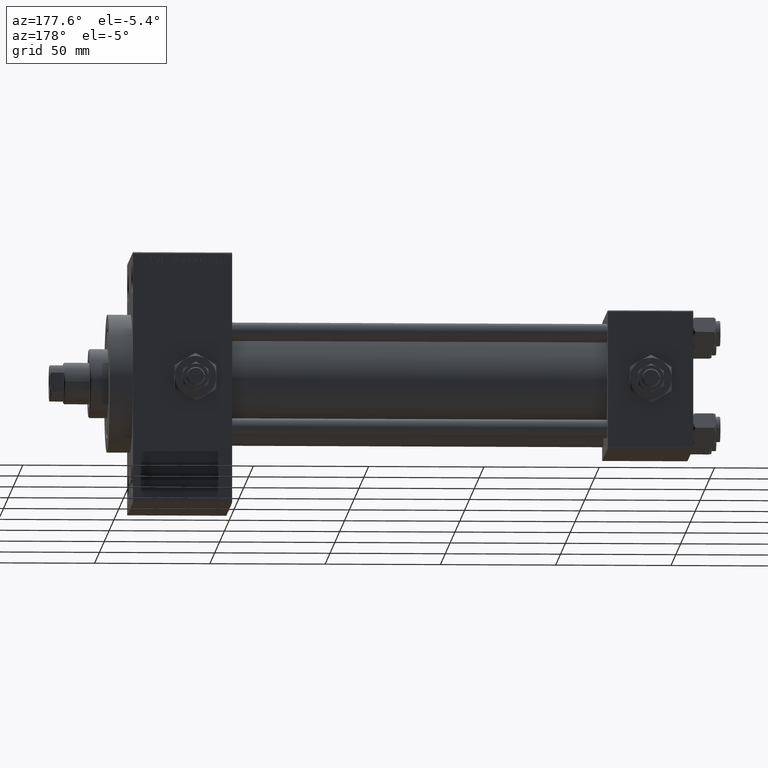
[diagram: clean part render]
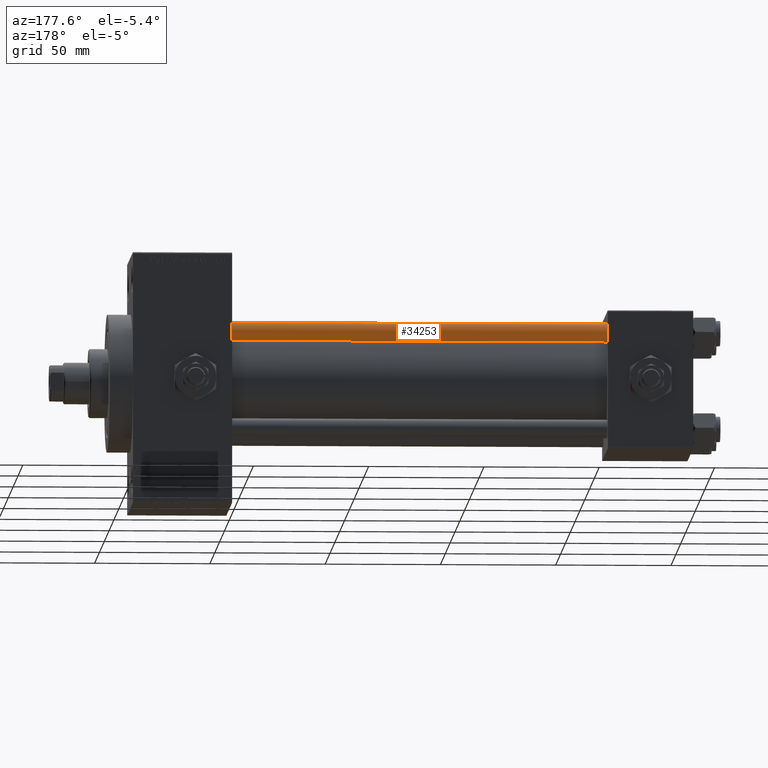
[diagram: same view with one face highlighted and labeled with its STEP entity id]
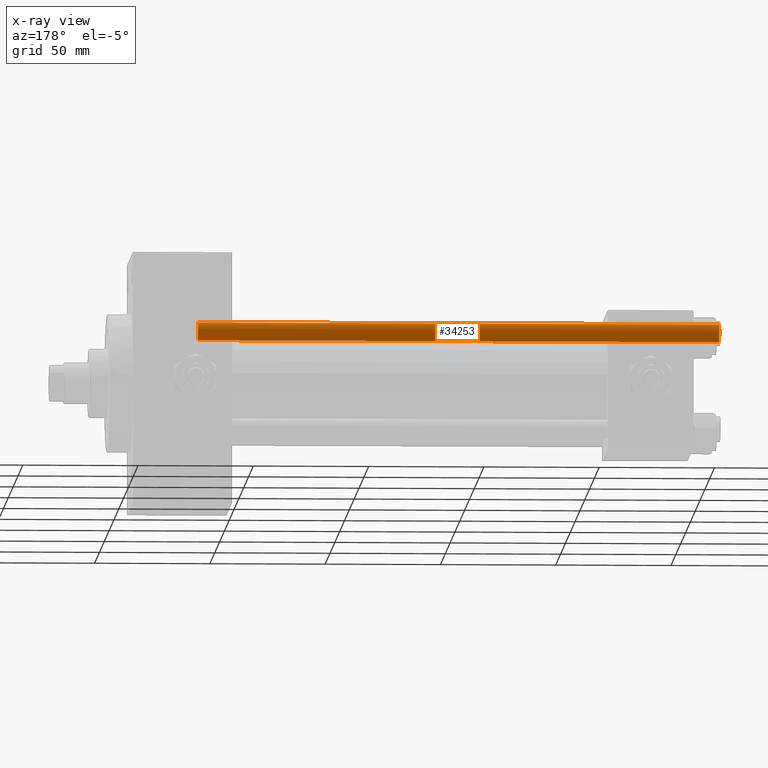
[diagram: x-ray of the same camera — body ghosted, the highlighted face saturated]
A machine part, auxiliary view. The second image highlights one B-rep face of the part: STEP entity #34253.
The next image is the same camera in x-ray: the body ghosted, the highlighted face saturated — about 0% of this face is hidden behind the body in this view.
In plain terms, the highlighted cylindrical surface (edge-blend (fillet) strip) has radius 4 mm, axis along (-1, -0, 0).
Its self-contained STEP definition (entity closure, byte-faithful):
#1015 = CARTESIAN_POINT ( 'NONE',  ( 4.000000000000000000, 4.898587196589411843E-16, 226.5000000000001421 ) ) ;
#1041 = CIRCLE ( 'NONE', #35536, 4.000000000000000000 ) ;
#1471 = CARTESIAN_POINT ( 'NONE',  ( 0.000000000000000000, 0.000000000000000000, 227.0000000000000000 ) ) ;
#2601 = VERTEX_POINT ( 'NONE', #1015 ) ;
#2988 = DIRECTION ( 'NONE',  ( 1.000000000000000000, 0.000000000000000000, 0.000000000000000000 ) ) ;
#3364 = ORIENTED_EDGE ( 'NONE', *, *, #41982, .T. ) ;
#3488 = CARTESIAN_POINT ( 'NONE',  ( 4.000000000000000000, 4.898587196589411843E-16, 0.5000000000002224887 ) ) ;
#3692 = CIRCLE ( 'NONE', #31688, 4.000000000000000000 ) ;
#6141 = VERTEX_POINT ( 'NONE', #31952 ) ;
#6850 = LINE ( 'NONE', #43907, #36440 ) ;
#8501 = FACE_OUTER_BOUND ( 'NONE', #29227, .T. ) ;
#10264 = DIRECTION ( 'NONE',  ( 0.000000000000000000, 0.000000000000000000, -1.000000000000000000 ) ) ;
#10574 = DIRECTION ( 'NONE',  ( -0.000000000000000000, -0.000000000000000000, -1.000000000000000000 ) ) ;
#12193 = EDGE_CURVE ( 'NONE', #35202, #6141, #6850, .T. ) ;
#14574 = EDGE_CURVE ( 'NONE', #35202, #2601, #3692, .T. ) ;
#16997 = CARTESIAN_POINT ( 'NONE',  ( -4.000000000000000000, 0.000000000000000000, 226.5000000000001421 ) ) ;
#17115 = CARTESIAN_POINT ( 'NONE',  ( 4.000000000000000000, 4.898587196589411843E-16, 227.0000000000000000 ) ) ;
#17541 = DIRECTION ( 'NONE',  ( 1.000000000000000000, 0.000000000000000000, 0.000000000000000000 ) ) ;
#18256 = DIRECTION ( 'NONE',  ( -0.000000000000000000, -0.000000000000000000, 1.000000000000000000 ) ) ;
#18599 = VECTOR ( 'NONE', #10574, 1000.000000000000000 ) ;
#20507 = CYLINDRICAL_SURFACE ( 'NONE', #36724, 4.000000000000000000 ) ;
#23778 = DIRECTION ( 'NONE',  ( -0.000000000000000000, -0.000000000000000000, -1.000000000000000000 ) ) ;
#27628 = ORIENTED_EDGE ( 'NONE', *, *, #45493, .T. ) ;
#28034 = ORIENTED_EDGE ( 'NONE', *, *, #12193, .F. ) ;
#29227 = EDGE_LOOP ( 'NONE', ( #40287, #3364, #27628, #28034 ) ) ;
#30040 = CARTESIAN_POINT ( 'NONE',  ( 0.000000000000000000, 0.000000000000000000, 0.5000000000002224887 ) ) ;
#31688 = AXIS2_PLACEMENT_3D ( 'NONE', #45065, #10264, #17541 ) ;
#31952 = CARTESIAN_POINT ( 'NONE',  ( -4.000000000000000000, 0.000000000000000000, 0.5000000000002224887 ) ) ;
#32037 = DIRECTION ( 'NONE',  ( -1.000000000000000000, 0.000000000000000000, 0.000000000000000000 ) ) ;
#32662 = VERTEX_POINT ( 'NONE', #3488 ) ;
#34253 = ADVANCED_FACE ( 'NONE', ( #8501 ), #20507, .T. ) ;
#35202 = VERTEX_POINT ( 'NONE', #16997 ) ;
#35536 = AXIS2_PLACEMENT_3D ( 'NONE', #30040, #18256, #2988 ) ;
#36440 = VECTOR ( 'NONE', #44638, 1000.000000000000000 ) ;
#36724 = AXIS2_PLACEMENT_3D ( 'NONE', #1471, #23778, #32037 ) ;
#40287 = ORIENTED_EDGE ( 'NONE', *, *, #14574, .T. ) ;
#41982 = EDGE_CURVE ( 'NONE', #2601, #32662, #47661, .T. ) ;
#43907 = CARTESIAN_POINT ( 'NONE',  ( -4.000000000000000000, 0.000000000000000000, 227.0000000000000000 ) ) ;
#44638 = DIRECTION ( 'NONE',  ( -0.000000000000000000, -0.000000000000000000, -1.000000000000000000 ) ) ;
#45065 = CARTESIAN_POINT ( 'NONE',  ( 0.000000000000000000, 0.000000000000000000, 226.5000000000001421 ) ) ;
#45493 = EDGE_CURVE ( 'NONE', #32662, #6141, #1041, .T. ) ;
#47661 = LINE ( 'NONE', #17115, #18599 ) ;